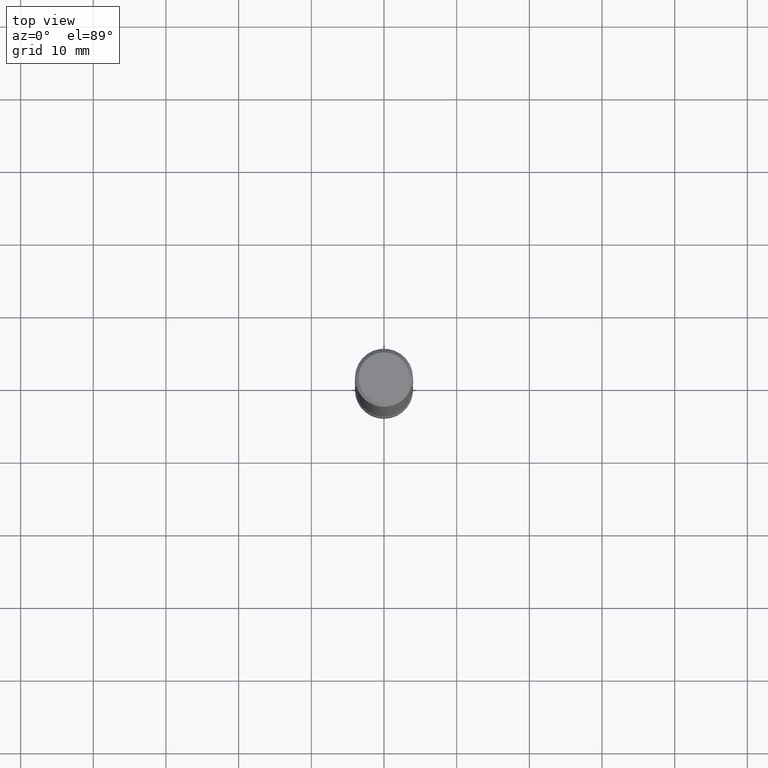
[diagram: clean part render]
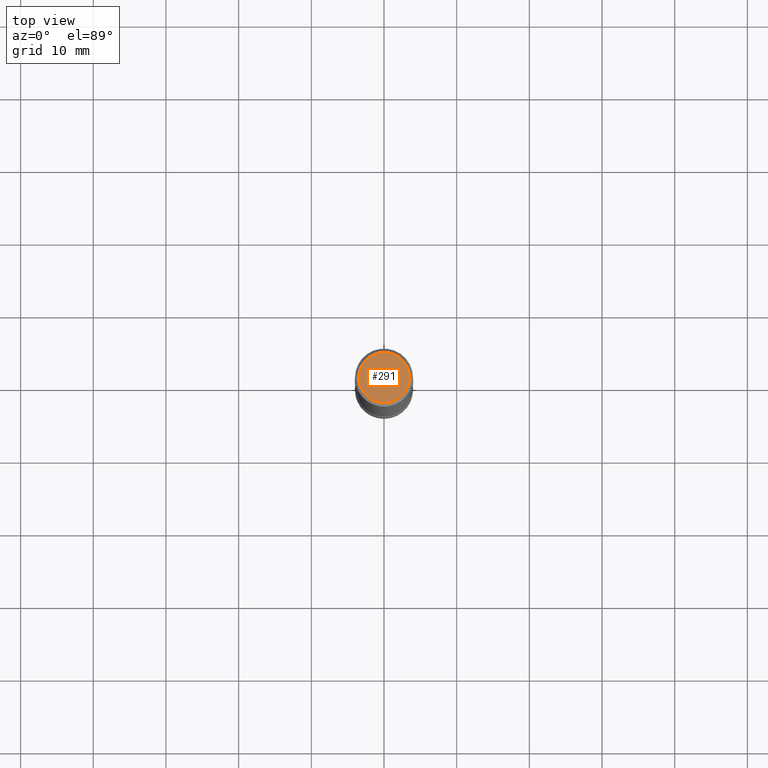
[diagram: same view with one face highlighted and labeled with its STEP entity id]
A machine part, top view. The second image highlights one B-rep face of the part: STEP entity #291.
In plain terms, the highlighted planar face has unit normal (-0, 0, 1).
Its self-contained STEP definition (entity closure, byte-faithful):
#17 = PLANE ( 'NONE',  #559 ) ;
#92 = FACE_OUTER_BOUND ( 'NONE', #516, .T. ) ;
#114 = CIRCLE ( 'NONE', #303, 0.1374999999999997335 ) ;
#146 = DIRECTION ( 'NONE',  ( -2.438088387897960049E-29, 3.491481338843145188E-15, 1.000000000000000000 ) ) ;
#151 = CARTESIAN_POINT ( 'NONE',  ( 0.000000000000000000, 0.000000000000000000, 0.000000000000000000 ) ) ;
#168 = EDGE_CURVE ( 'NONE', #256, #349, #114, .T. ) ;
#171 = EDGE_CURVE ( 'NONE', #349, #256, #230, .T. ) ;
#183 = CARTESIAN_POINT ( 'NONE',  ( 9.601573681818597005E-16, 0.1374999999999997335, -4.779444278458813133E-16 ) ) ;
#184 = ORIENTED_EDGE ( 'NONE', *, *, #168, .F. ) ;
#230 = CIRCLE ( 'NONE', #246, 0.1374999999999997335 ) ;
#233 = DIRECTION ( 'NONE',  ( 2.445468806185136597E-29, -3.491481338843145583E-15, -1.000000000000000000 ) ) ;
#240 = CARTESIAN_POINT ( 'NONE',  ( -0.1374999999999997335, 9.601573681818597005E-16, -6.704743066719399103E-30 ) ) ;
#246 = AXIS2_PLACEMENT_3D ( 'NONE', #324, #233, #443 ) ;
#256 = VERTEX_POINT ( 'NONE', #240 ) ;
#291 = ADVANCED_FACE ( 'NONE', ( #92 ), #17, .T. ) ;
#303 = AXIS2_PLACEMENT_3D ( 'NONE', #151, #491, #453 ) ;
#308 = CARTESIAN_POINT ( 'NONE',  ( 0.1374999999999997335, -1.046838268059730322E-15, 7.017535886221982554E-30 ) ) ;
#324 = CARTESIAN_POINT ( 'NONE',  ( 0.000000000000000000, 0.000000000000000000, 0.000000000000000000 ) ) ;
#349 = VERTEX_POINT ( 'NONE', #308 ) ;
#384 = ORIENTED_EDGE ( 'NONE', *, *, #171, .F. ) ;
#443 = DIRECTION ( 'NONE',  ( -1.000000000000000000, 6.982962677686265922E-15, -4.876176775795935793E-29 ) ) ;
#453 = DIRECTION ( 'NONE',  ( -1.000000000000000000, 6.982962677686265922E-15, -4.876176775795935793E-29 ) ) ;
#491 = DIRECTION ( 'NONE',  ( 2.445468806185136597E-29, -3.491481338843145583E-15, -1.000000000000000000 ) ) ;
#516 = EDGE_LOOP ( 'NONE', ( #184, #384 ) ) ;
#535 = DIRECTION ( 'NONE',  ( 1.000000000000000000, -6.982962677686265922E-15, 4.876176775795935793E-29 ) ) ;
#559 = AXIS2_PLACEMENT_3D ( 'NONE', #183, #146, #535 ) ;